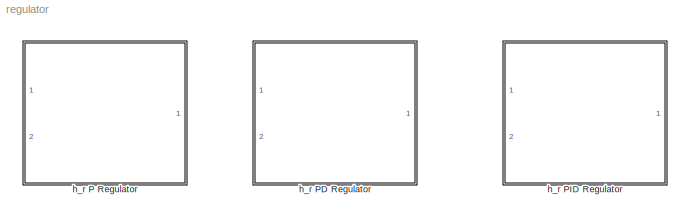
MODEL regulator
KIND model
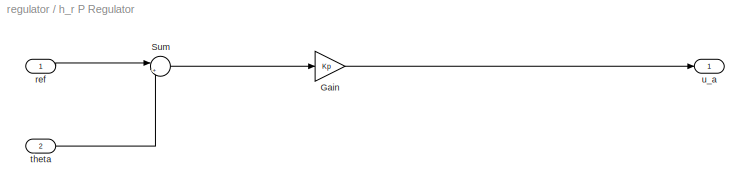
BLOCK [SubSystem] h_r P Regulator
  FunctionWithSeparateData = off
  MaskDisplay = image(imread('maxon_ctrl.jpg'))\nport_label('input',1,'ref','texmode','on')\nport_label('input',2,'\\theta','texmode','on')\nport_label('output',1,'u_a','texmode','on')
  MaskEnableString = on
  MaskHideContents = off
  MaskIconFrame = on
  MaskIconOpaque = on
  MaskIconRotate = none
  MaskIconUnits = autoscale
  MaskPromptString = Kp
  MaskStyleString = edit
  MaskToolTipString = on
  MaskTunableValueString = on
  MaskValueString = Kp
  MaskVariables = Kp=@1;
  MaskVisibilityString = on
  MinAlgLoopOccurrences = off
  Ports = [2, 1]
  RTWSystemCode = Auto
BLOCK [Gain] h_r P Regulator/Gain
  Gain = Kp
  OutDataTypeMode = Inherit via internal rule
  ParameterDataTypeMode = Inherit via internal rule
  SaturateOnIntegerOverflow = off
BLOCK [Sum] h_r P Regulator/Sum
  IconShape = round
  InputSameDT = off
  Inputs = |+-
  OutDataTypeMode = Inherit via internal rule
  Ports = [2, 1]
  SaturateOnIntegerOverflow = off
BLOCK [Inport] h_r P Regulator/ref
  IconDisplay = Port number
BLOCK [Inport] h_r P Regulator/theta
  IconDisplay = Port number
  Port = 2
BLOCK [Outport] h_r P Regulator/u_a
  BusOutputAsStruct = off
  IconDisplay = Port number
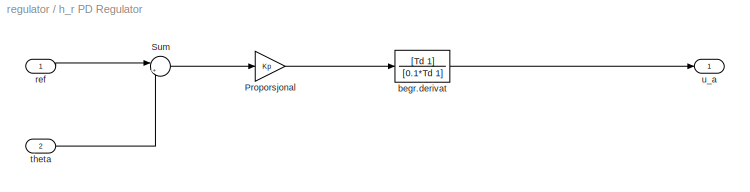
BLOCK [SubSystem] h_r PD Regulator
  FunctionWithSeparateData = off
  MaskCallbackString = |
  MaskDisplay = image(imread('maxon_ctrl.jpg'))\nport_label('input',1,'ref','texmode','on')\nport_label('input',2,'\\theta','texmode','on')\nport_label('output',1,'u_a','texmode','on')
  MaskEnableString = on,on
  MaskHideContents = off
  MaskIconFrame = on
  MaskIconOpaque = on
  MaskIconRotate = none
  MaskIconUnits = autoscale
  MaskPromptString = Kp|Td
  MaskStyleString = edit,edit
  MaskTabNameString = ,
  MaskToolTipString = on,on
  MaskTunableValueString = on,on
  MaskValueString = Kp|Td
  MaskVarAliasString = ,
  MaskVariables = Kp=@1;Td=@2;
  MaskVisibilityString = on,on
  MinAlgLoopOccurrences = off
  Ports = [2, 1]
  RTWSystemCode = Auto
BLOCK [Gain] h_r PD Regulator/Proporsjonal
  Gain = Kp
  OutDataTypeMode = Inherit via internal rule
  ParameterDataTypeMode = Inherit via internal rule
  SaturateOnIntegerOverflow = off
BLOCK [Sum] h_r PD Regulator/Sum
  IconShape = round
  InputSameDT = off
  Inputs = |+-
  OutDataTypeMode = Inherit via internal rule
  Ports = [2, 1]
  SaturateOnIntegerOverflow = off
BLOCK [TransferFcn] h_r PD Regulator/begr.derivat
  Denominator = [0.1*Td 1]
  Numerator = [Td 1]
BLOCK [Inport] h_r PD Regulator/ref
  IconDisplay = Port number
BLOCK [Inport] h_r PD Regulator/theta
  IconDisplay = Port number
  Port = 2
BLOCK [Outport] h_r PD Regulator/u_a
  BusOutputAsStruct = off
  IconDisplay = Port number
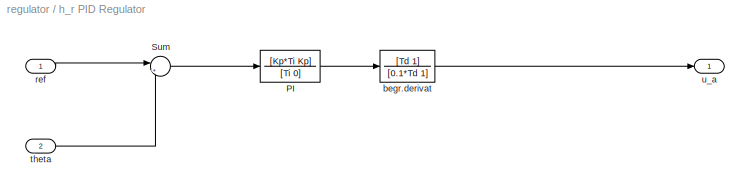
BLOCK [SubSystem] h_r PID Regulator
  FunctionWithSeparateData = off
  MaskCallbackString = ||
  MaskDisplay = image(imread('maxon_ctrl.jpg'))\nport_label('input',1,'ref','texmode','on')\nport_label('input',2,'\\theta','texmode','on')\nport_label('output',1,'u_a','texmode','on')
  MaskEnableString = on,on,on
  MaskHideContents = off
  MaskIconFrame = on
  MaskIconOpaque = on
  MaskIconRotate = none
  MaskIconUnits = autoscale
  MaskPromptString = Kp|Ti|Td
  MaskStyleString = edit,edit,edit
  MaskTabNameString = ,,
  MaskToolTipString = on,on,on
  MaskTunableValueString = on,on,on
  MaskValueString = Kp|Ti|Td
  MaskVarAliasString = ,,
  MaskVariables = Kp=@1;Ti=@2;Td=@3;
  MaskVisibilityString = on,on,on
  MinAlgLoopOccurrences = off
  Ports = [2, 1]
  RTWSystemCode = Auto
BLOCK [TransferFcn] h_r PID Regulator/PI
  Denominator = [Ti 0]
  Numerator = [Kp*Ti Kp]
BLOCK [Sum] h_r PID Regulator/Sum
  IconShape = round
  InputSameDT = off
  Inputs = |+-
  OutDataTypeMode = Inherit via internal rule
  Ports = [2, 1]
  SaturateOnIntegerOverflow = off
BLOCK [TransferFcn] h_r PID Regulator/begr.derivat
  Denominator = [0.1*Td 1]
  Numerator = [Td 1]
BLOCK [Inport] h_r PID Regulator/ref
  IconDisplay = Port number
BLOCK [Inport] h_r PID Regulator/theta
  IconDisplay = Port number
  Port = 2
BLOCK [Outport] h_r PID Regulator/u_a
  BusOutputAsStruct = off
  IconDisplay = Port number
LINE h_r P Regulator/Gain:1 -> h_r P Regulator/u_a:1
LINE h_r P Regulator/Sum:1 -> h_r P Regulator/Gain:1
LINE h_r P Regulator/ref:1 -> h_r P Regulator/Sum:1
LINE h_r P Regulator/theta:1 -> h_r P Regulator/Sum:2
LINE h_r PD Regulator/Proporsjonal:1 -> h_r PD Regulator/begr.derivat:1
LINE h_r PD Regulator/Sum:1 -> h_r PD Regulator/Proporsjonal:1
LINE h_r PD Regulator/begr.derivat:1 -> h_r PD Regulator/u_a:1
LINE h_r PD Regulator/ref:1 -> h_r PD Regulator/Sum:1
LINE h_r PD Regulator/theta:1 -> h_r PD Regulator/Sum:2
LINE h_r PID Regulator/PI:1 -> h_r PID Regulator/begr.derivat:1
LINE h_r PID Regulator/Sum:1 -> h_r PID Regulator/PI:1
LINE h_r PID Regulator/begr.derivat:1 -> h_r PID Regulator/u_a:1
LINE h_r PID Regulator/ref:1 -> h_r PID Regulator/Sum:1
LINE h_r PID Regulator/theta:1 -> h_r PID Regulator/Sum:2
